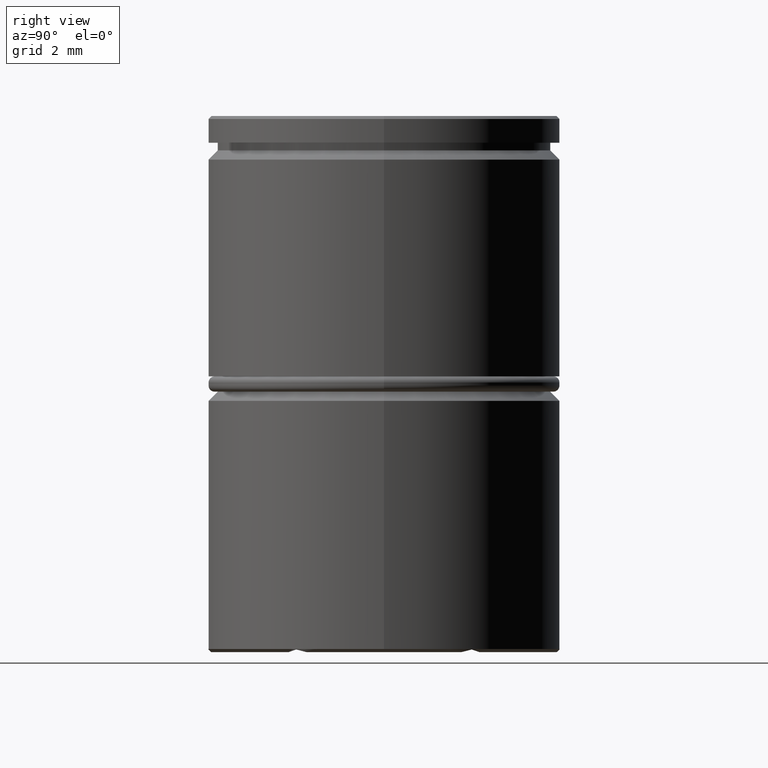
[diagram: clean part render]
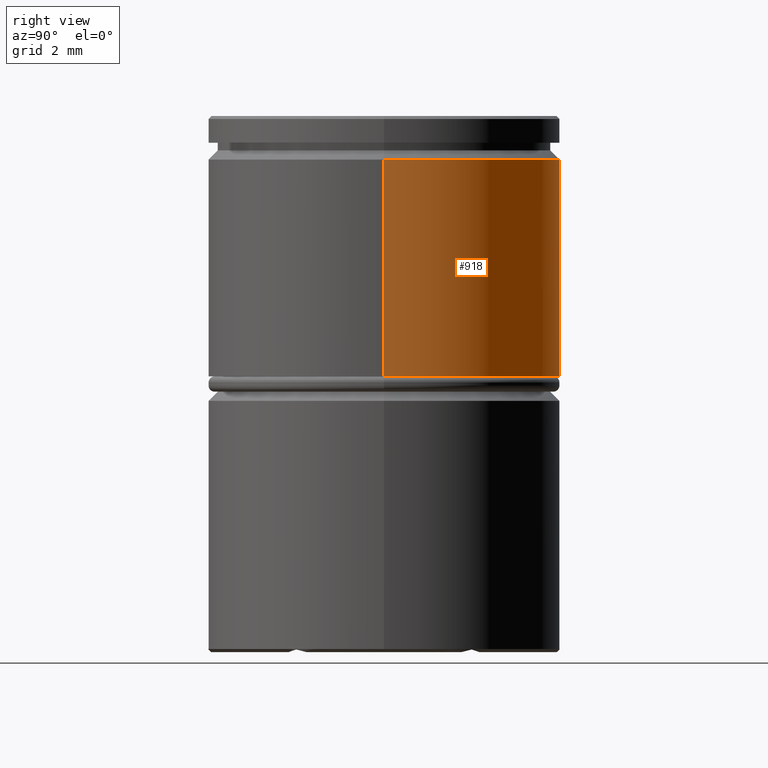
[diagram: same view with one face highlighted and labeled with its STEP entity id]
A machine part, right view. The second image highlights one B-rep face of the part: STEP entity #918.
In plain terms, the highlighted cylindrical surface (partial cylindrical patch) has radius 5.75 mm, axis along (-0, -0, 1).
Its self-contained STEP definition (entity closure, byte-faithful):
#28 = EDGE_CURVE ( 'NONE', #654, #743, #1230, .T. ) ;
#29 = ORIENTED_EDGE ( 'NONE', *, *, #444, .T. ) ;
#72 = ORIENTED_EDGE ( 'NONE', *, *, #302, .F. ) ;
#88 = DIRECTION ( 'NONE',  ( 1.000000000000000000, 0.000000000000000000, 0.000000000000000000 ) ) ;
#302 = EDGE_CURVE ( 'NONE', #654, #1196, #809, .T. ) ;
#309 = AXIS2_PLACEMENT_3D ( 'NONE', #1054, #846, #329 ) ;
#310 = CYLINDRICAL_SURFACE ( 'NONE', #309, 5.750000000000000000 ) ;
#328 = ORIENTED_EDGE ( 'NONE', *, *, #28, .T. ) ;
#329 = DIRECTION ( 'NONE',  ( 1.000000000000000000, 0.000000000000000000, 0.000000000000000000 ) ) ;
#398 = CARTESIAN_POINT ( 'NONE',  ( 5.750000000000000000, 0.000000000000000000, 0.000000000000000000 ) ) ;
#437 = AXIS2_PLACEMENT_3D ( 'NONE', #837, #959, #88 ) ;
#444 = EDGE_CURVE ( 'NONE', #717, #1196, #870, .T. ) ;
#484 = AXIS2_PLACEMENT_3D ( 'NONE', #1181, #1217, #884 ) ;
#521 = CARTESIAN_POINT ( 'NONE',  ( -5.750000000000000000, 7.041719095097280880E-16, 0.000000000000000000 ) ) ;
#545 = VECTOR ( 'NONE', #714, 1000.000000000000000 ) ;
#593 = FACE_OUTER_BOUND ( 'NONE', #1250, .T. ) ;
#610 = EDGE_CURVE ( 'NONE', #743, #717, #925, .T. ) ;
#649 = ORIENTED_EDGE ( 'NONE', *, *, #610, .T. ) ;
#654 = VERTEX_POINT ( 'NONE', #1107 ) ;
#713 = DIRECTION ( 'NONE',  ( -0.000000000000000000, -0.000000000000000000, 1.000000000000000000 ) ) ;
#714 = DIRECTION ( 'NONE',  ( -0.000000000000000000, -0.000000000000000000, 1.000000000000000000 ) ) ;
#717 = VERTEX_POINT ( 'NONE', #784 ) ;
#743 = VERTEX_POINT ( 'NONE', #983 ) ;
#773 = CARTESIAN_POINT ( 'NONE',  ( 5.750000000000000000, 0.000000000000000000, -1.424999999999994937 ) ) ;
#784 = CARTESIAN_POINT ( 'NONE',  ( -5.750000000000000000, 7.041719095097280880E-16, -1.424999999999994937 ) ) ;
#809 = LINE ( 'NONE', #398, #1141 ) ;
#837 = CARTESIAN_POINT ( 'NONE',  ( 0.000000000000000000, 0.000000000000000000, -8.500000000000000000 ) ) ;
#846 = DIRECTION ( 'NONE',  ( -0.000000000000000000, -0.000000000000000000, 1.000000000000000000 ) ) ;
#870 = CIRCLE ( 'NONE', #484, 5.750000000000000000 ) ;
#884 = DIRECTION ( 'NONE',  ( 1.000000000000000000, 0.000000000000000000, 0.000000000000000000 ) ) ;
#918 = ADVANCED_FACE ( 'NONE', ( #593 ), #310, .T. ) ;
#925 = LINE ( 'NONE', #521, #545 ) ;
#959 = DIRECTION ( 'NONE',  ( -0.000000000000000000, -0.000000000000000000, 1.000000000000000000 ) ) ;
#983 = CARTESIAN_POINT ( 'NONE',  ( -5.750000000000000000, 7.041719095097280880E-16, -8.500000000000000000 ) ) ;
#1054 = CARTESIAN_POINT ( 'NONE',  ( 0.000000000000000000, 0.000000000000000000, 0.000000000000000000 ) ) ;
#1107 = CARTESIAN_POINT ( 'NONE',  ( 5.750000000000000000, 0.000000000000000000, -8.500000000000000000 ) ) ;
#1141 = VECTOR ( 'NONE', #713, 1000.000000000000000 ) ;
#1181 = CARTESIAN_POINT ( 'NONE',  ( 0.000000000000000000, 0.000000000000000000, -1.424999999999994937 ) ) ;
#1196 = VERTEX_POINT ( 'NONE', #773 ) ;
#1217 = DIRECTION ( 'NONE',  ( 0.000000000000000000, 0.000000000000000000, -1.000000000000000000 ) ) ;
#1230 = CIRCLE ( 'NONE', #437, 5.750000000000000000 ) ;
#1250 = EDGE_LOOP ( 'NONE', ( #328, #649, #29, #72 ) ) ;